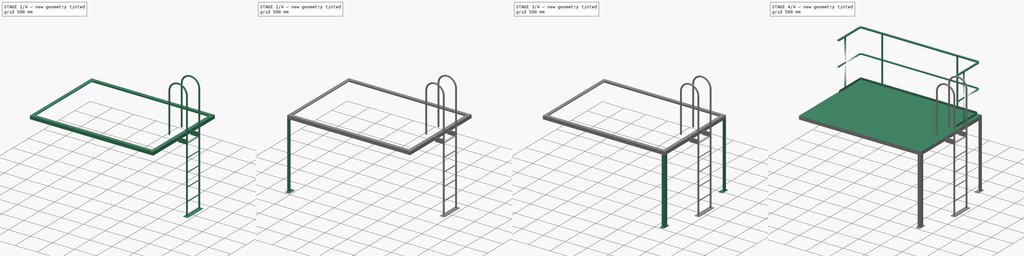
[diagram: build sequence overview — one tinted view per stage of 4, left to right]
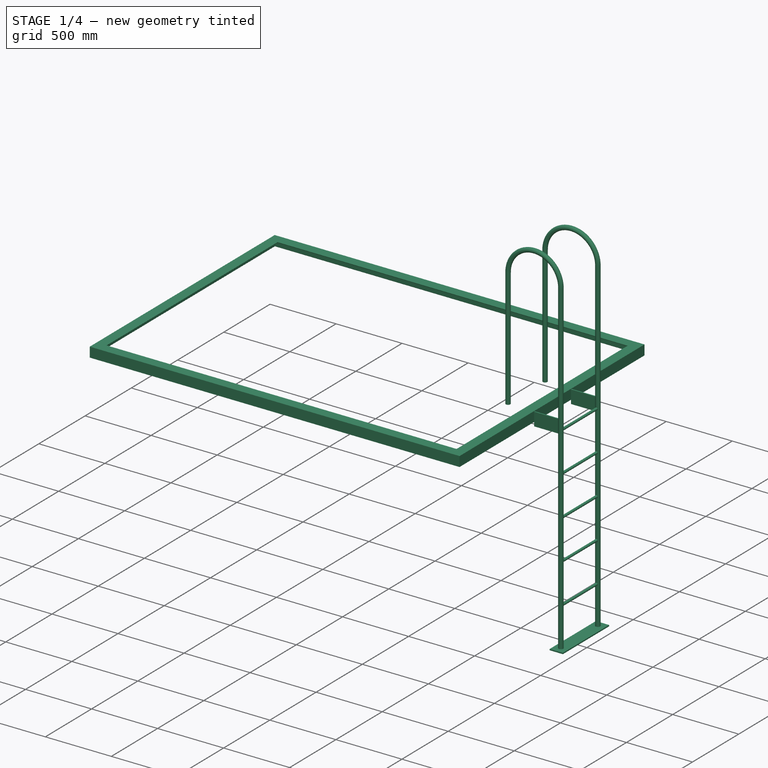
[diagram: stage 1 of 4 — iso view after this stage's code; geometry added in this stage tinted green]
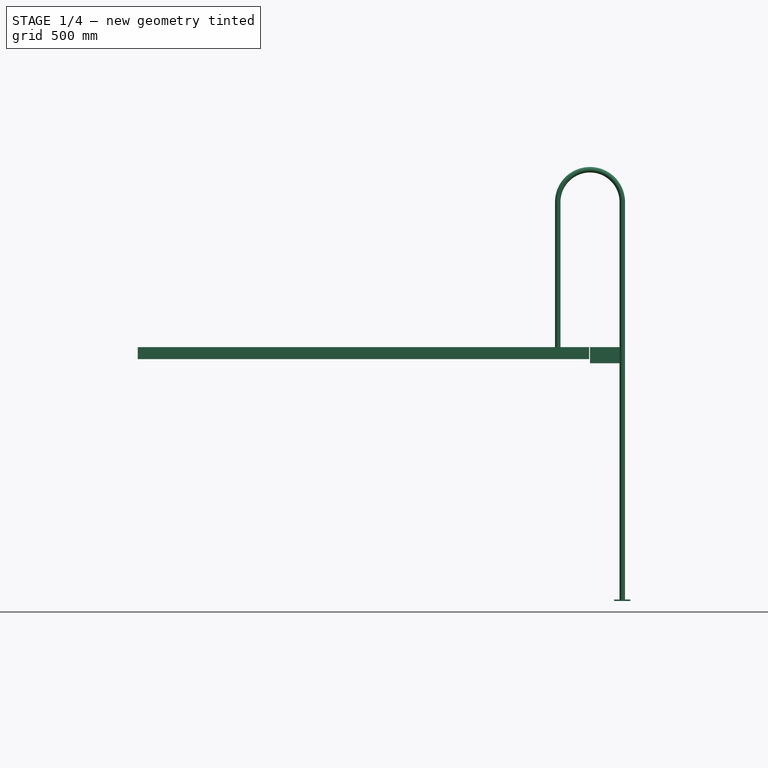
[diagram: stage 1 of 4 — front view after this stage's code; geometry added in this stage tinted green]
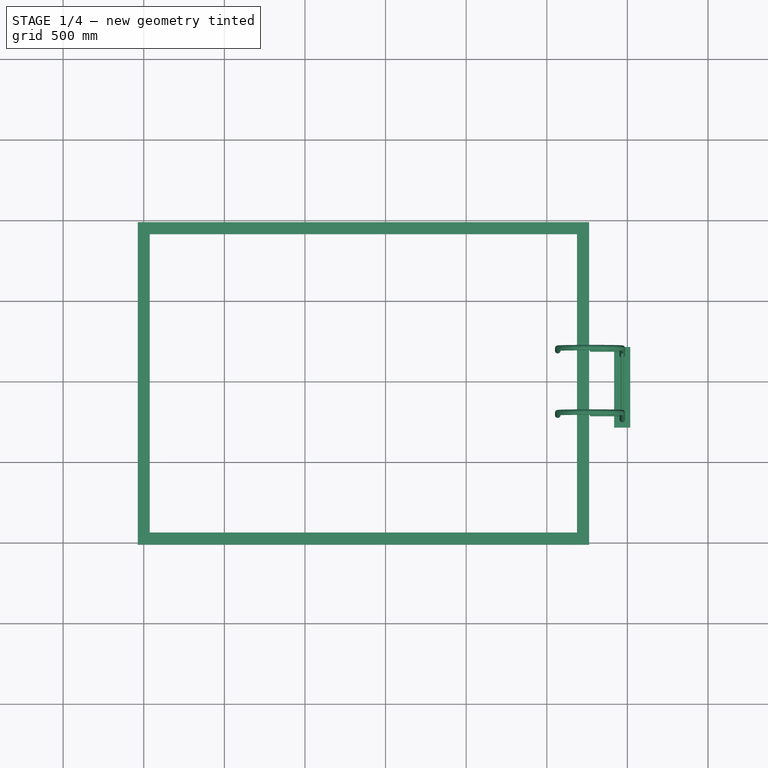
[diagram: stage 1 of 4 — top view after this stage's code; geometry added in this stage tinted green]
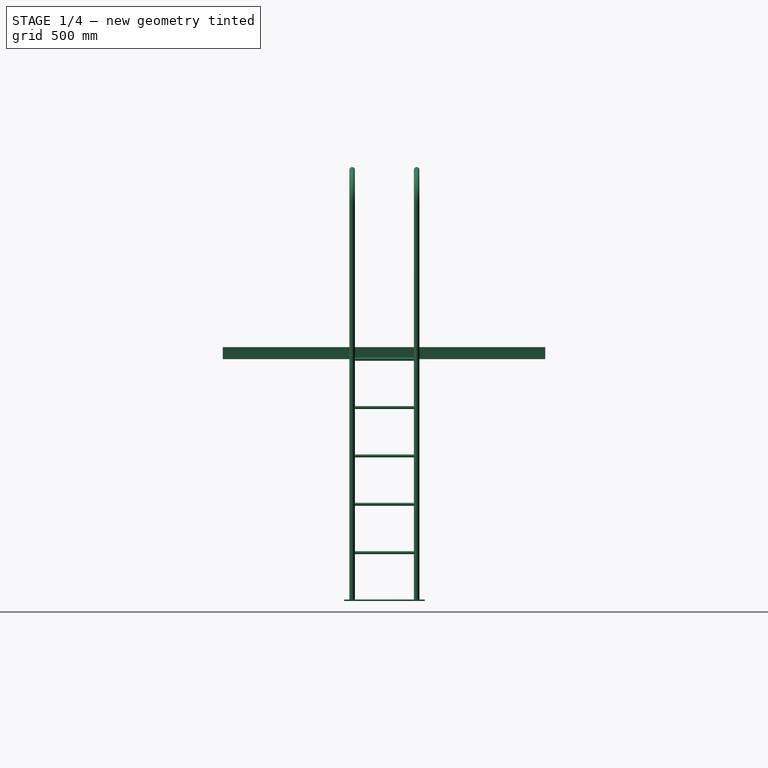
[diagram: stage 1 of 4 — right view after this stage's code; geometry added in this stage tinted green]
FCSTD DOCUMENT  (FreeCAD 1.0R39319 (Git))
Label: trestle04
License: All rights reserved
objects: Part::Mirroring×5, Part::FeaturePython×4, Sketcher::SketchObject×2, Part::Part2DObjectPython×1, Part::Extrusion×1, Spreadsheet::Sheet×1, PartDesign::Pad×1, Part::MultiFuse×1, Part::Sweep×1, App::Part×1
note: 20 computed .brp shape members not serialized (recipe doc carries the construction recipe); baked Part::Feature solids carry a one-line shape summary decoded from their .brp

FEATURE [Part::FeaturePython] LadderA  # WARN: FeaturePython — macro-defined, semantics opaque (R4)
  FloorHeight = 1575
  Placement = pos=(-238,765,0) rot=(0,0,1;0rad)
  RailingHeight = 1100
  StepHeight = 300
  g0 = 7.85
  mass = 30.0961
  type = 0
  expr: .Placement.Base.y = Spreadsheet002.L0 / 2 - 235
  expr: FloorHeight = Spreadsheet002.H0 + 75
FEATURE [Part::Mirroring] Mirror005  label="LadderA (mirrored)"
  Base = (1365,1946.35,3179.5)
  Normal = (-1,0,0)
  Source = -> LadderA
  expr: .Base.x = Spreadsheet002.W0 / 2 - 35
FEATURE [Sketcher::SketchObject] Sketch001
  ArcFitTolerance = 1e-06
  FullyConstrained = true
  MakeInternals = false
  Placement = pos=(-37.5,-37.5,1575) rot=(0,0,1;0rad)
  expr: .Placement.Base.z = Spreadsheet002.H0 + 75
  expr: Constraints[10] = Spreadsheet002.L0
  expr: Constraints[9] = Spreadsheet002.W0
  sketch-geometry (4):
    g0: LineSegment StartX=0 StartY=0 StartZ=0 EndX=2800 EndY=0 EndZ=0
    g1: LineSegment StartX=2800 StartY=0 StartZ=0 EndX=2800 EndY=2000 EndZ=0
    g2: LineSegment StartX=2800 StartY=2000 StartZ=0 EndX=0 EndY=2000 EndZ=0
    g3: LineSegment StartX=0 StartY=2000 StartZ=0 EndX=0 EndY=0 EndZ=0
  constraints (11):
    c: Coincident(g0,g1)
    c: Coincident(g1,g2)
    c: Coincident(g2,g3)
    c: Coincident(g3,g0)
    c: Horizontal(g0)
    c: Horizontal(g2)
    c: Vertical(g1)
    c: Vertical(g3)
    c: Coincident(g0,g-1)
    c: DistanceX(g2,g2) = 2800
    c: DistanceY(g1,g1) = 2000
FEATURE [Part::Sweep] Sweep
  Frenet = true
  Sections = -> [AngleSteel]
  Solid = true
  Spine = -> Sketch001 [Edge4,Edge1,Edge2,Edge3]
  Transition = 1
FEATURE [App::Part] Part002  label="trestleAssy"
  Group = -> [Spreadsheet002,Rectangle,Extrude004,AngleSteel,Channel,Mirror002,LadderA,AngleSteel001,Fusion,Sketch,Pad,Mirror,Mirror003,Mirror004,Mirror005,Sketch001,Sweep]
  Origin = -> Origin002
  Placement = pos=(-1288.98,1310.31,2541.04) rot=(0,0,1;0rad)
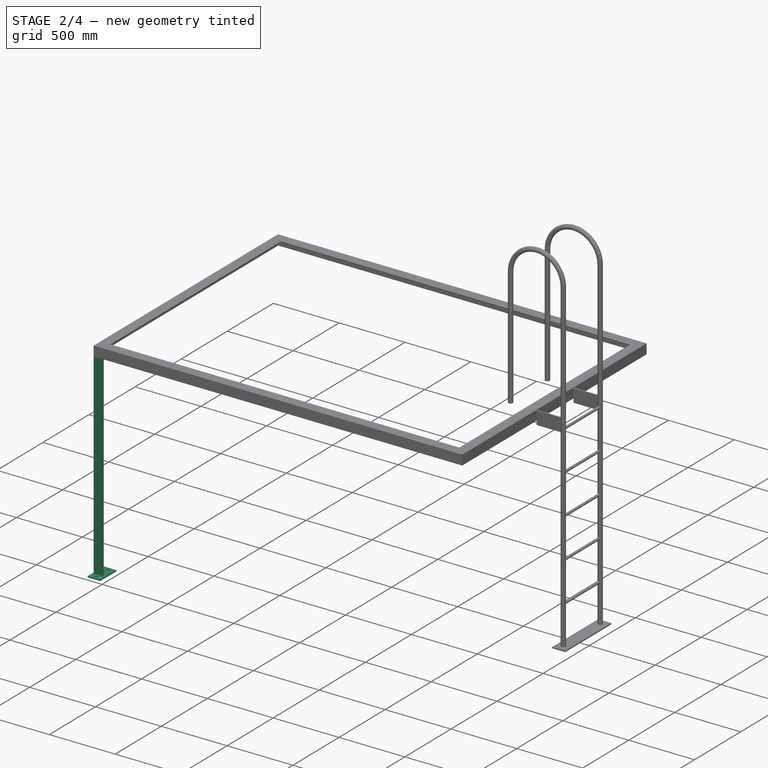
[diagram: stage 2 of 4 — iso view after this stage's code; geometry added in this stage tinted green]
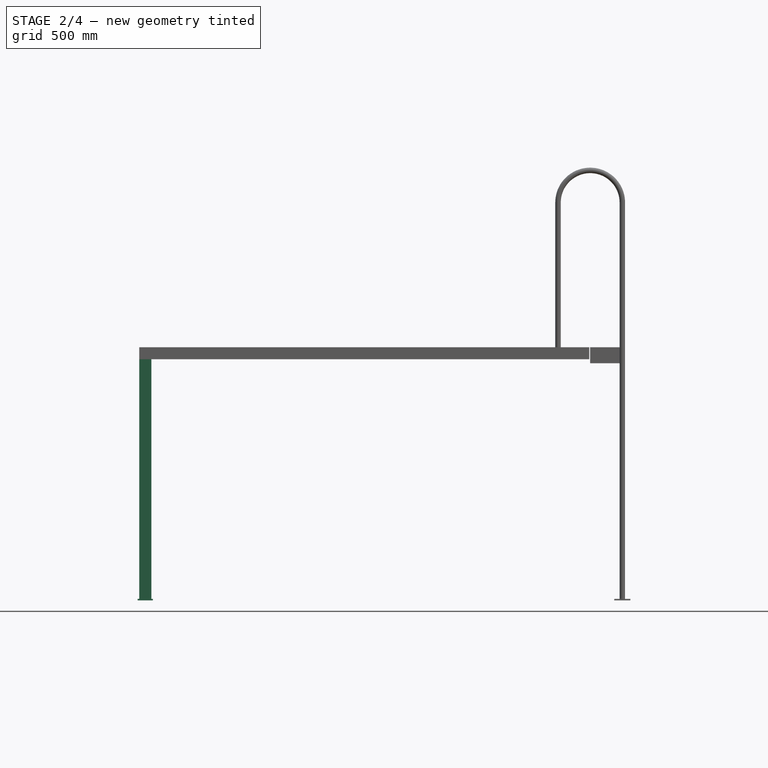
[diagram: stage 2 of 4 — front view after this stage's code; geometry added in this stage tinted green]
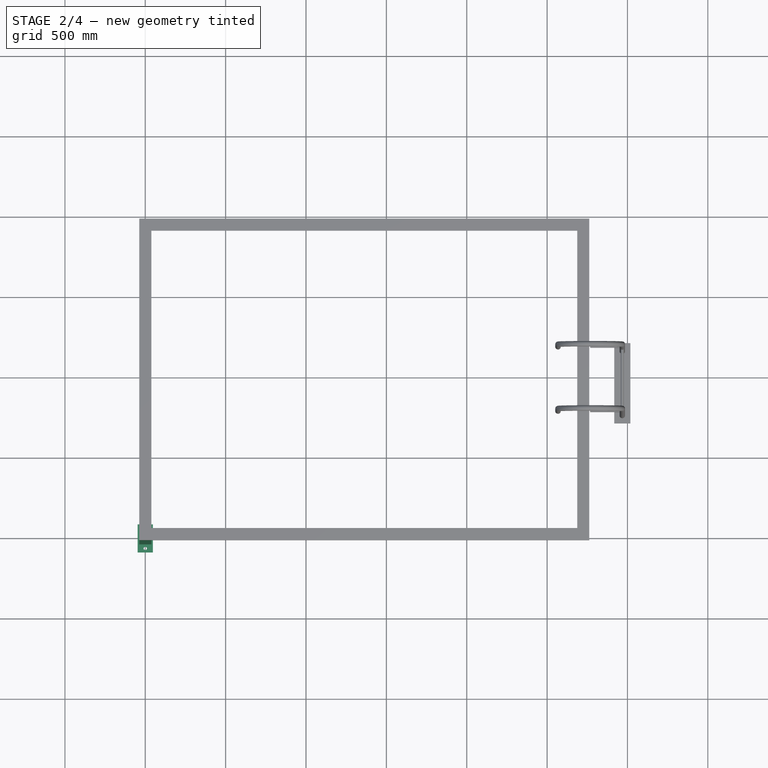
[diagram: stage 2 of 4 — top view after this stage's code; geometry added in this stage tinted green]
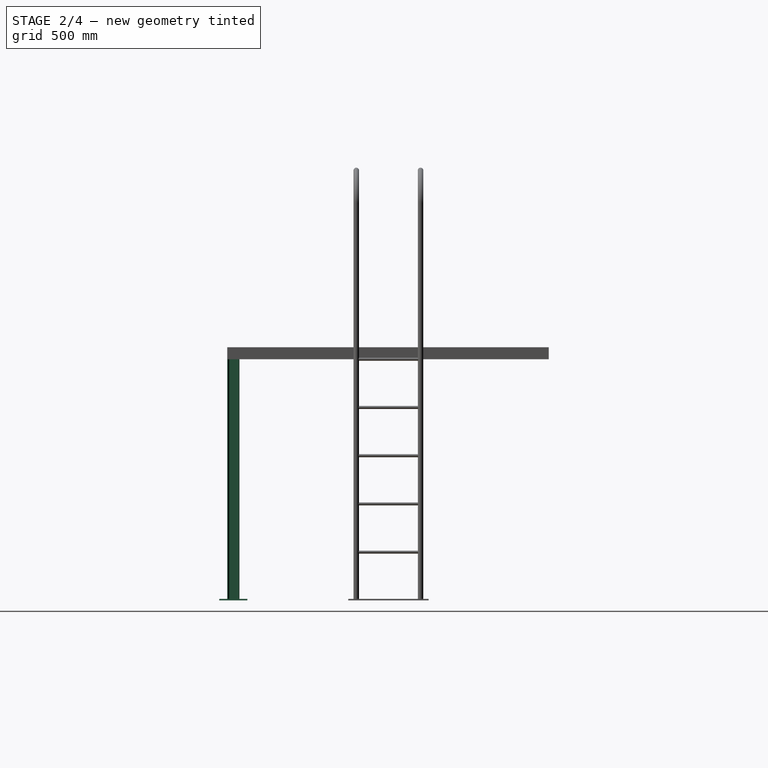
[diagram: stage 2 of 4 — right view after this stage's code; geometry added in this stage tinted green]
FEATURE [Part::FeaturePython] AngleSteel001  # WARN: FeaturePython — macro-defined, semantics opaque (R4)
  A = 75
  B = 75
  L = 1500
  Solid = true
  Standard = L=1800
  g0 = 7.85
  mass = 10.2753
  size = 10
  standard = SS_Equal
  t = 6
  type = 00_Angle
  expr: L = Spreadsheet002.H0
FEATURE [Sketcher::SketchObject] Sketch
  ArcFitTolerance = 1e-06
  AttachmentSupport = -> [AngleSteel001]
  ExternalGeometry = -> [AngleSteel001,AngleSteel]
  FullyConstrained = true
  MakeInternals = false
  MapMode = 5
  Placement = pos=(0,0,0) rot=(1,0,0;1.5708rad)
  sketch-geometry (7):
    g0: LineSegment StartX=-87.5 StartY=-47.5 StartZ=0 EndX=87.5 EndY=-47.5 EndZ=0
    g1: LineSegment StartX=87.5 StartY=-47.5 StartZ=0 EndX=87.5 EndY=47.5 EndZ=0
    g2: LineSegment StartX=87.5 StartY=47.5 StartZ=0 EndX=-87.5 EndY=47.5 EndZ=0
    g3: LineSegment StartX=-87.5 StartY=47.5 StartZ=0 EndX=-87.5 EndY=-47.5 EndZ=0
    g4: GeomPoint [constr] X=0 Y=0 Z=0
    g5: Circle CenterX=-62.5 CenterY=0 CenterZ=0 NormalX=0 NormalY=0 NormalZ=1 AngleXU=0 Radius=10
    g6: Circle CenterX=62.5 CenterY=0 CenterZ=0 NormalX=0 NormalY=0 NormalZ=1 AngleXU=0 Radius=10
  constraints (18):
    c: Coincident(g0,g1)
    c: Coincident(g1,g2)
    c: Coincident(g2,g3)
    c: Coincident(g3,g0)
    c: Horizontal(g0)
    c: Horizontal(g2)
    c: Vertical(g1)
    c: Vertical(g3)
    c: Symmetric(g2,g0,g4)
    c: Coincident(g4,g-1)
    c: DistanceY(g0,g-3) = 10
    c: DistanceX(g-3,g0) = 50
    c: PointOnObject(g5,g-1)
    c: PointOnObject(g6,g-1)
    c: Diameter(g5) = 20
    c: Equal(g5,g6)
    c: DistanceX(g2,g5) = 25
    c: DistanceX(g6,g1) = 25
FEATURE [PartDesign::Pad] Pad  label="plt"
  Direction = (0,-1,2e-16)
  Length = 9
  Length2 = 10
  Profile = -> Sketch
  ReferenceAxis = -> Sketch [N_Axis]
  Refine = true
  Reversed = true
  Suppressed = false
  Type = 0
FEATURE [Part::MultiFuse] Fusion  label="Pst_L"
  Placement = pos=(0,0,0) rot=(0.57735,0.57735,0.57735;2.0944rad)
  Refine = true
  Shapes = -> [Pad,AngleSteel001]
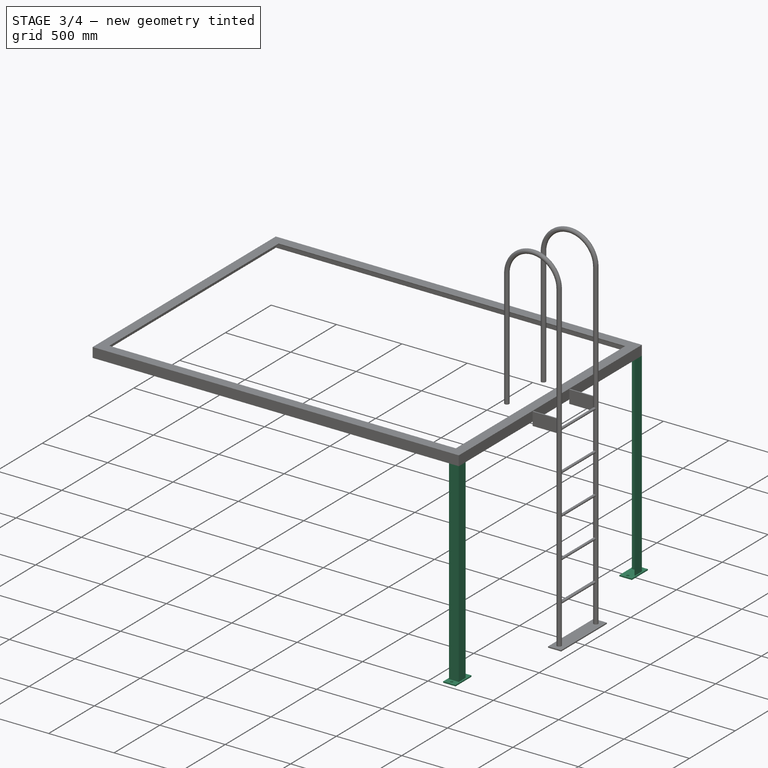
[diagram: stage 3 of 4 — iso view after this stage's code; geometry added in this stage tinted green]
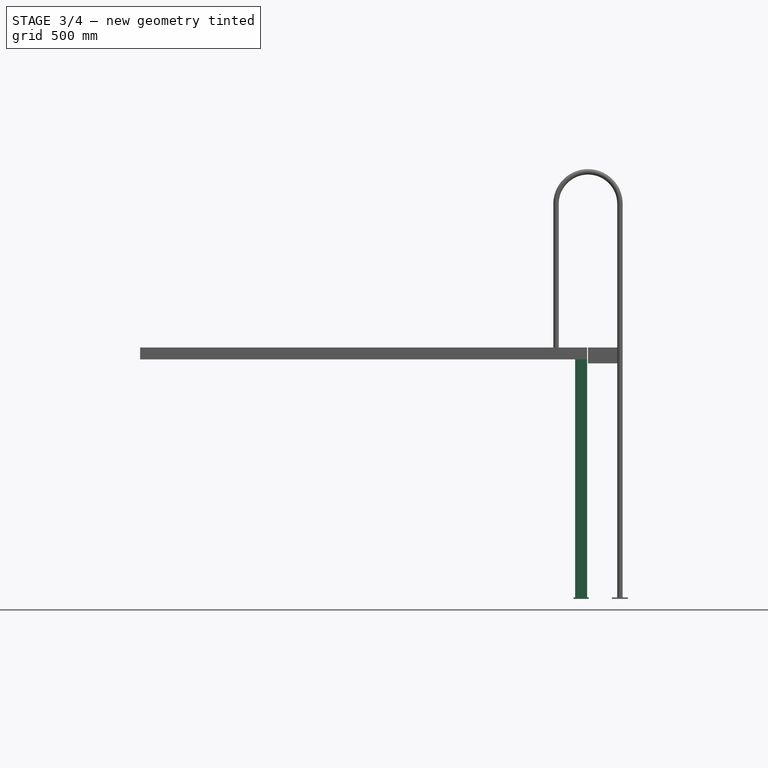
[diagram: stage 3 of 4 — front view after this stage's code; geometry added in this stage tinted green]
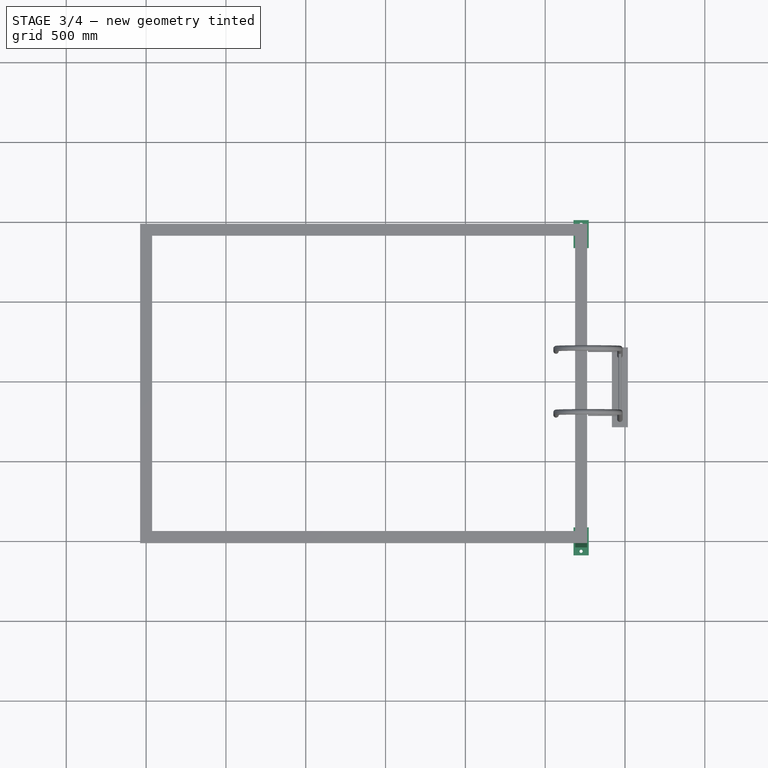
[diagram: stage 3 of 4 — top view after this stage's code; geometry added in this stage tinted green]
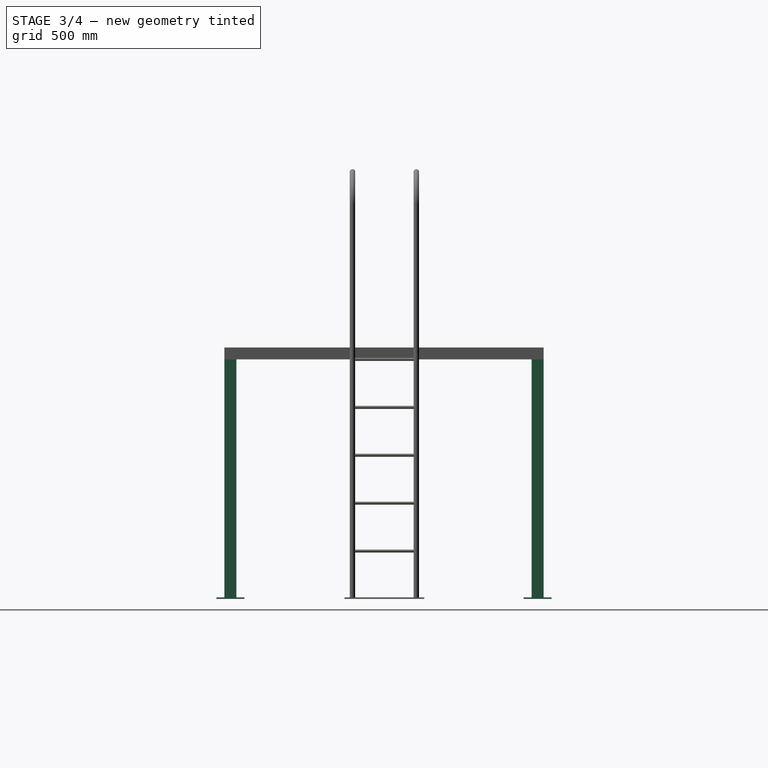
[diagram: stage 3 of 4 — right view after this stage's code; geometry added in this stage tinted green]
FEATURE [Part::Mirroring] Mirror  label="Pst_L (mirrored)"
  Base = (-37.5,962.5,2079.5)
  Normal = (0,-1,0)
  Source = -> Fusion
FEATURE [Part::Mirroring] Mirror003  label="Pst_L (mirrored)001"
  Base = (1362.5,962.5,2079.5)
  Normal = (-1,0,0)
  Source = -> Fusion
  expr: .Base.x = Spreadsheet002.W0 / 2 - 37.5
  expr: .Base.y = Spreadsheet002.L0 / 2 - 37.5
FEATURE [Part::Mirroring] Mirror004  label="Pst_L (mirrored) (mirrored)"
  Base = (1362.5,1962.5,2079.5)
  Normal = (-1,0,0)
  Source = -> Mirror
  expr: .Base.x = Spreadsheet002.W0 / 2 - 37.5
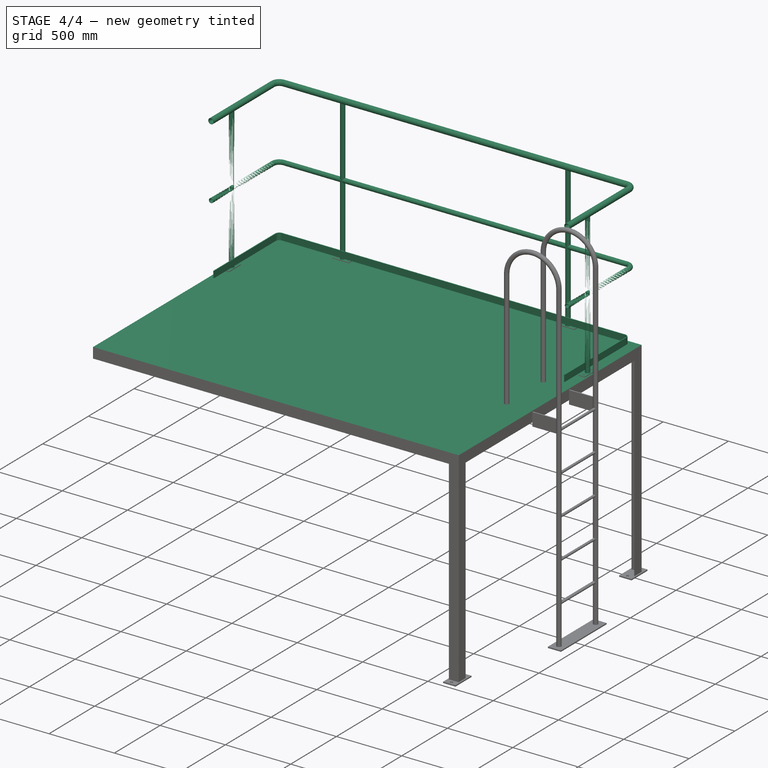
[diagram: stage 4 of 4 — iso view after this stage's code; geometry added in this stage tinted green]
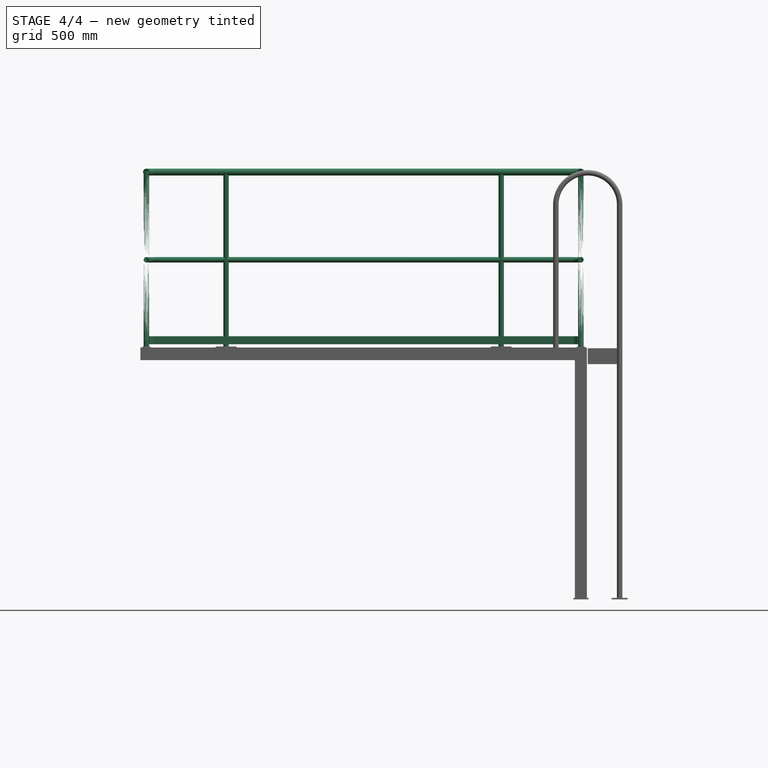
[diagram: stage 4 of 4 — front view after this stage's code; geometry added in this stage tinted green]
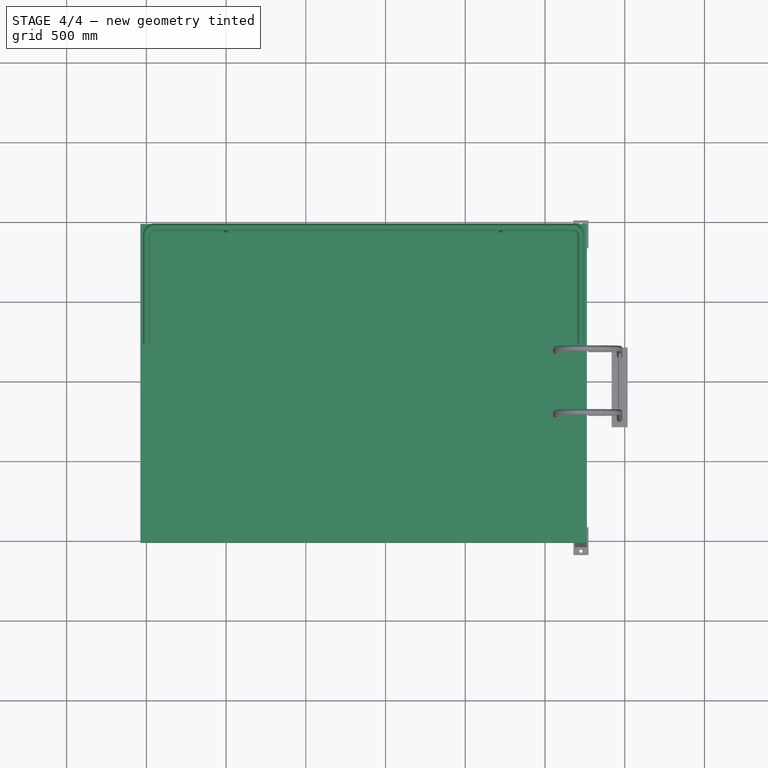
[diagram: stage 4 of 4 — top view after this stage's code; geometry added in this stage tinted green]
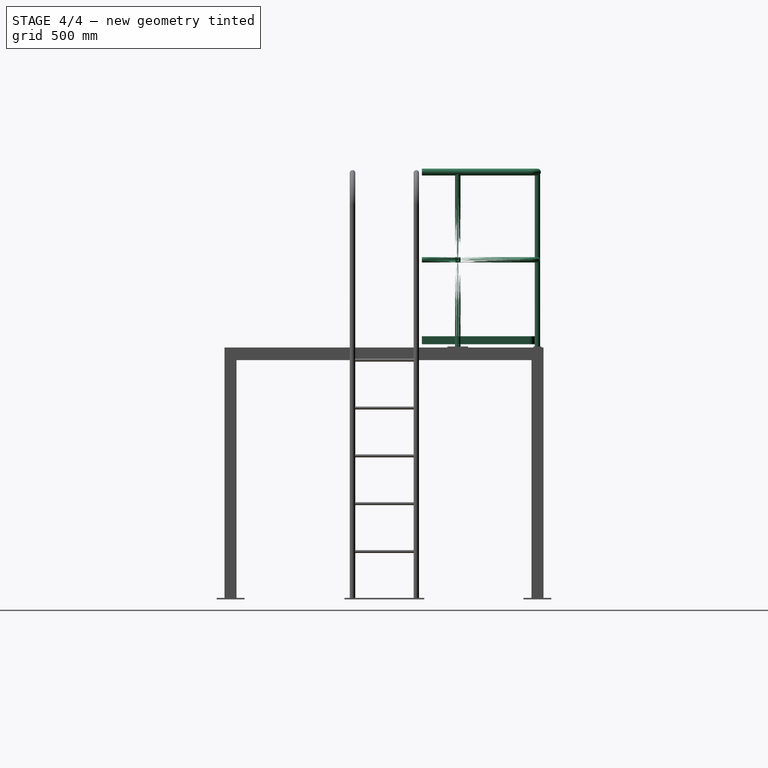
[diagram: stage 4 of 4 — right view after this stage's code; geometry added in this stage tinted green]
FEATURE [Part::Part2DObjectPython] Rectangle  # Draft 2D object (typed FeaturePython)
  Area = 5600000
  ChamferSize = 0
  Columns = 1
  FilletRadius = 0
  Height = 2000
  Length = 2800
  MakeFace = true
  Placement = pos=(0,0,1500) rot=(0,0,1;0rad)
  Rows = 1
  expr: .Placement.Base.z = Spreadsheet002.H0
  expr: Height = Spreadsheet002.L0
  expr: Length = Spreadsheet002.W0
FEATURE [Part::Extrusion] Extrude004  label="plate"
  Base = -> Rectangle
  Dir = (0,0,1)
  DirMode = 2
  FaceMakerClass = Part::FaceMakerBullseye
  FaceMakerMode = 3
  LengthFwd = 4.5
  LengthRev = 0
  Placement = pos=(-37.5,-37.5,75) rot=(0,0,1;0rad)
  Solid = false
  Symmetric = false
FEATURE [Part::FeaturePython] AngleSteel  # WARN: FeaturePython — macro-defined, semantics opaque (R4)
  A = 75
  B = 75
  L = 1000
  Placement = pos=(-37.5,0,1575) rot=(0,1,0;1.5708rad)
  Solid = false
  Standard = L=1000
  g0 = 7.85
  mass = 0
  size = 10
  standard = SS_Equal
  t = 6
  expr: .Placement.Base.z = Spreadsheet002.H0 + 75
FEATURE [Spreadsheet::Sheet] Spreadsheet002
  cells = A1(key)='04; A2='W; B2(W0)=2800; A3='L; B3(L0)=2000; A4='H; B4(H0)=1500
FEATURE [Part::FeaturePython] Channel  # WARN: FeaturePython — macro-defined, semantics opaque (R4)
  Placement = pos=(1362.5,0,1579.5) rot=(0,0,1;0rad)
  Reverse = false
  Standard = L1=1212.5,L2=975.0
  g0 = 7.85
  h = 1100
  k = 90
  l1 = 1362.5
  l2 = 725
  mass = 62.6299
  p = 1000
  spec = 0
  type = 6
  expr: .Placement.Base.x = (Spreadsheet002.W0 - 75) / 2
  expr: .Placement.Base.z = Spreadsheet002.H0 + 75 + 4.5
  expr: l1 = (Spreadsheet002.W0 - 75) / 2
  expr: l2 = (Spreadsheet002.L0 - 400) / 2 - 75
FEATURE [Part::Mirroring] Mirror002  label="Channel (mirrored)"
  Base = (3000,0,0)
  Normal = (0,1,0)
  Placement = pos=(0,1925,0) rot=(0,0,1;0rad)
  Source = -> Channel
  expr: .Placement.Base.y = Spreadsheet002.L0 - 75
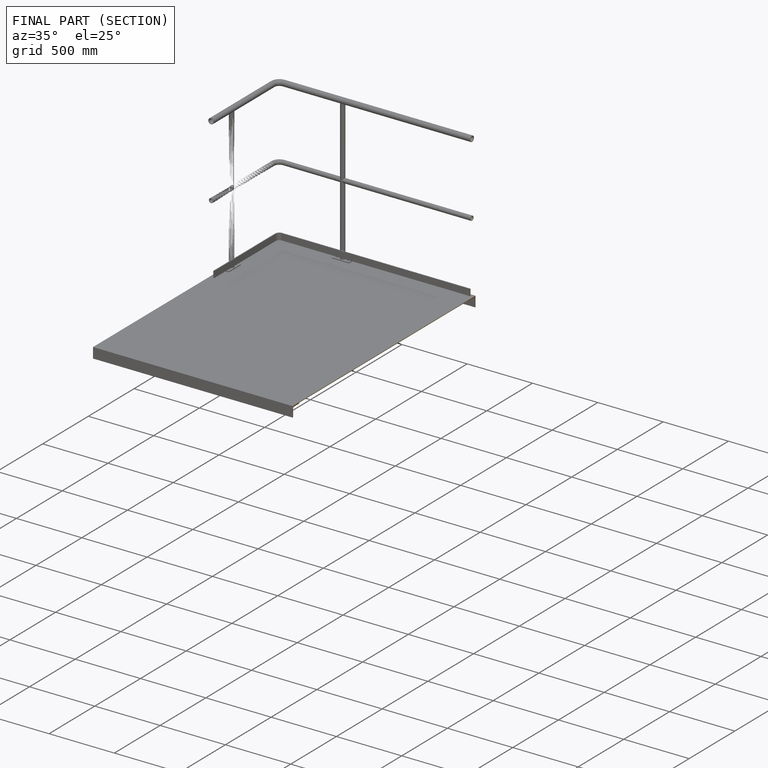
[diagram: finished part — half-section view (interior)]
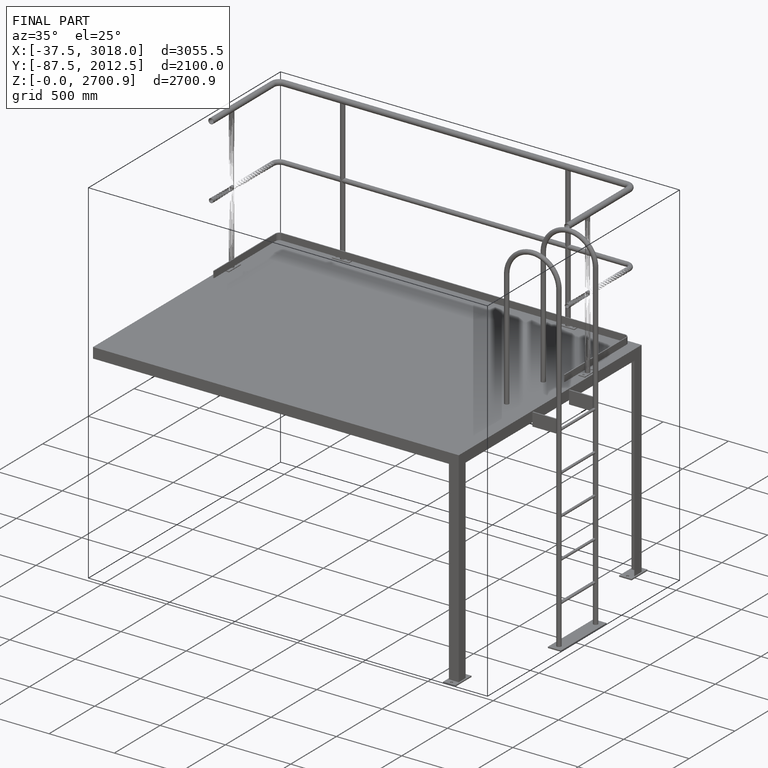
[diagram: finished part — iso view with bounding-box wireframe]
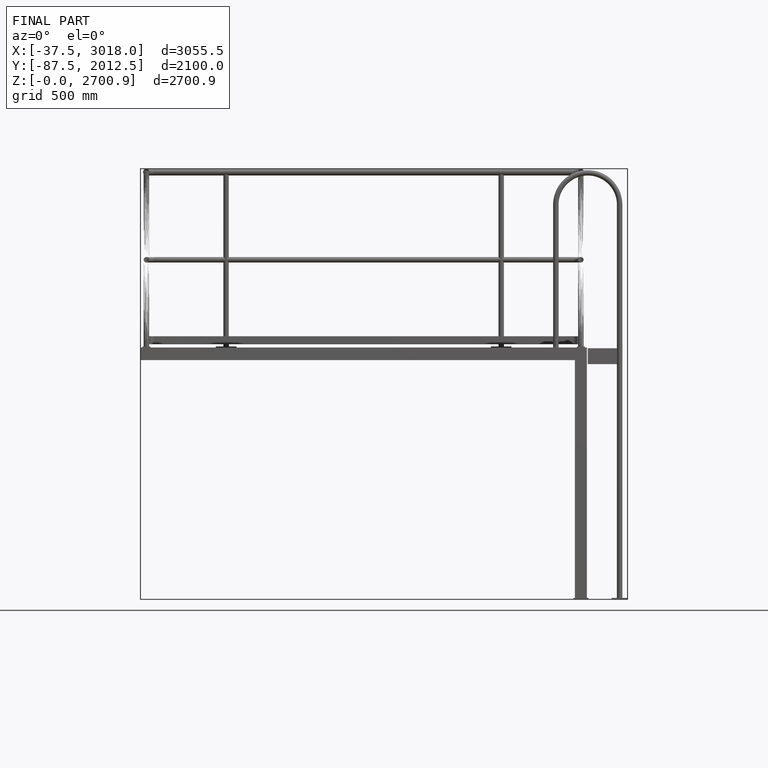
[diagram: finished part — front view with bounding-box wireframe]
